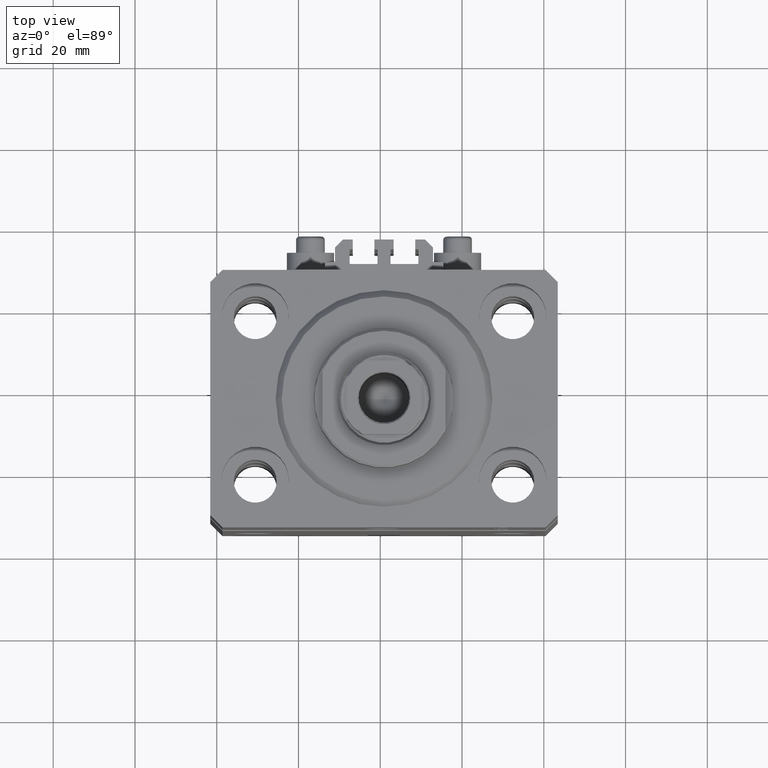
[diagram: clean part render]
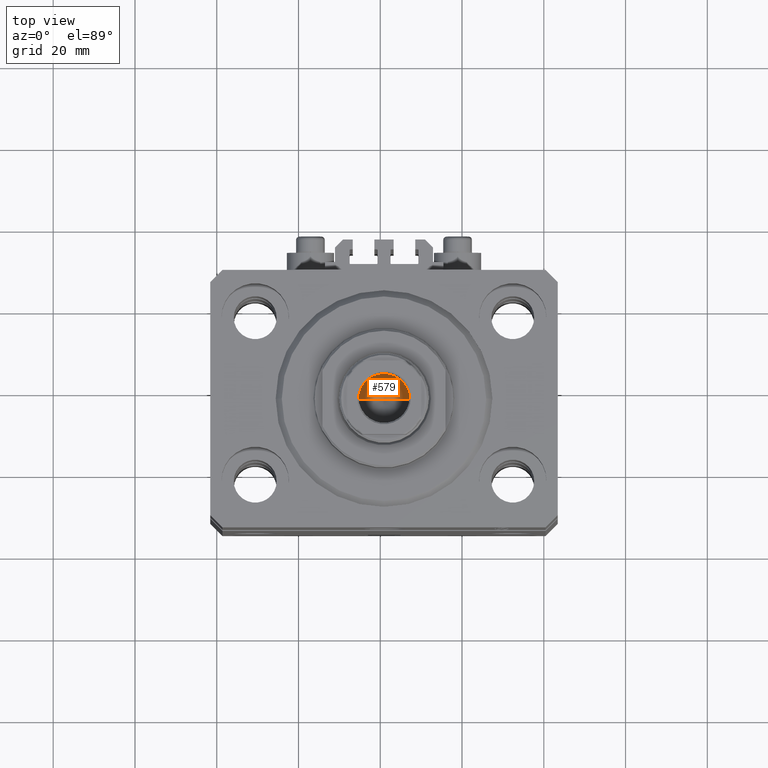
[diagram: same view with one face highlighted and labeled with its STEP entity id]
A machine part, top view. The second image highlights one B-rep face of the part: STEP entity #579.
In plain terms, the highlighted conical surface has half-angle 59 deg.
Its self-contained STEP definition (entity closure, byte-faithful):
#579 = ADVANCED_FACE ( 'NONE', ( #5875 ), #24230, .F. ) ;
#2132 = AXIS2_PLACEMENT_3D ( 'NONE', #40497, #37290, #33344 ) ;
#2594 = CARTESIAN_POINT ( 'NONE',  ( 6.249999999999993783, 0.000000000000000000, 103.5999999999999943 ) ) ;
#2672 = ORIENTED_EDGE ( 'NONE', *, *, #13985, .F. ) ;
#4608 = DIRECTION ( 'NONE',  ( -0.8571673007021115565, 1.049727191138617710E-16, 0.5150380749100554878 ) ) ;
#5339 = LINE ( 'NONE', #28412, #46419 ) ;
#5875 = FACE_OUTER_BOUND ( 'NONE', #32614, .T. ) ;
#7946 = EDGE_CURVE ( 'NONE', #15544, #14146, #5339, .T. ) ;
#9238 = CARTESIAN_POINT ( 'NONE',  ( -7.434177670704979810E-15, 0.000000000000000000, 99.84462113107774428 ) ) ;
#9799 = CARTESIAN_POINT ( 'NONE',  ( 0.000000000000000000, 0.000000000000000000, 103.5999999999999943 ) ) ;
#10105 = ORIENTED_EDGE ( 'NONE', *, *, #32542, .T. ) ;
#10896 = ORIENTED_EDGE ( 'NONE', *, *, #7946, .T. ) ;
#13985 = EDGE_CURVE ( 'NONE', #15544, #27491, #35112, .T. ) ;
#14146 = VERTEX_POINT ( 'NONE', #2594 ) ;
#15544 = VERTEX_POINT ( 'NONE', #9238 ) ;
#16707 = DIRECTION ( 'NONE',  ( 1.000000000000000000, 0.000000000000000000, 0.000000000000000000 ) ) ;
#20225 = CIRCLE ( 'NONE', #2132, 6.249999999999993783 ) ;
#21243 = CARTESIAN_POINT ( 'NONE',  ( -6.249999999999993783, 7.654042494670949718E-16, 103.5999999999999943 ) ) ;
#23788 = CARTESIAN_POINT ( 'NONE',  ( -6.249999999999993783, 7.654042494670949718E-16, 103.5999999999999943 ) ) ;
#24230 = CONICAL_SURFACE ( 'NONE', #30508, 6.249999999999993783, 1.029744258676652979 ) ;
#27491 = VERTEX_POINT ( 'NONE', #21243 ) ;
#28412 = CARTESIAN_POINT ( 'NONE',  ( 6.249999999999993783, 0.000000000000000000, 103.5999999999999943 ) ) ;
#30508 = AXIS2_PLACEMENT_3D ( 'NONE', #9799, #35884, #16707 ) ;
#32542 = EDGE_CURVE ( 'NONE', #14146, #27491, #20225, .T. ) ;
#32614 = EDGE_LOOP ( 'NONE', ( #2672, #10896, #10105 ) ) ;
#33344 = DIRECTION ( 'NONE',  ( 1.000000000000000000, 0.000000000000000000, 0.000000000000000000 ) ) ;
#34044 = VECTOR ( 'NONE', #4608, 1000.000000000000000 ) ;
#35112 = LINE ( 'NONE', #23788, #34044 ) ;
#35884 = DIRECTION ( 'NONE',  ( -0.000000000000000000, -0.000000000000000000, 1.000000000000000000 ) ) ;
#36293 = DIRECTION ( 'NONE',  ( 0.8571673007021115565, 0.000000000000000000, 0.5150380749100554878 ) ) ;
#37290 = DIRECTION ( 'NONE',  ( -0.000000000000000000, -0.000000000000000000, 1.000000000000000000 ) ) ;
#40497 = CARTESIAN_POINT ( 'NONE',  ( 0.000000000000000000, 0.000000000000000000, 103.5999999999999943 ) ) ;
#46419 = VECTOR ( 'NONE', #36293, 1000.000000000000000 ) ;